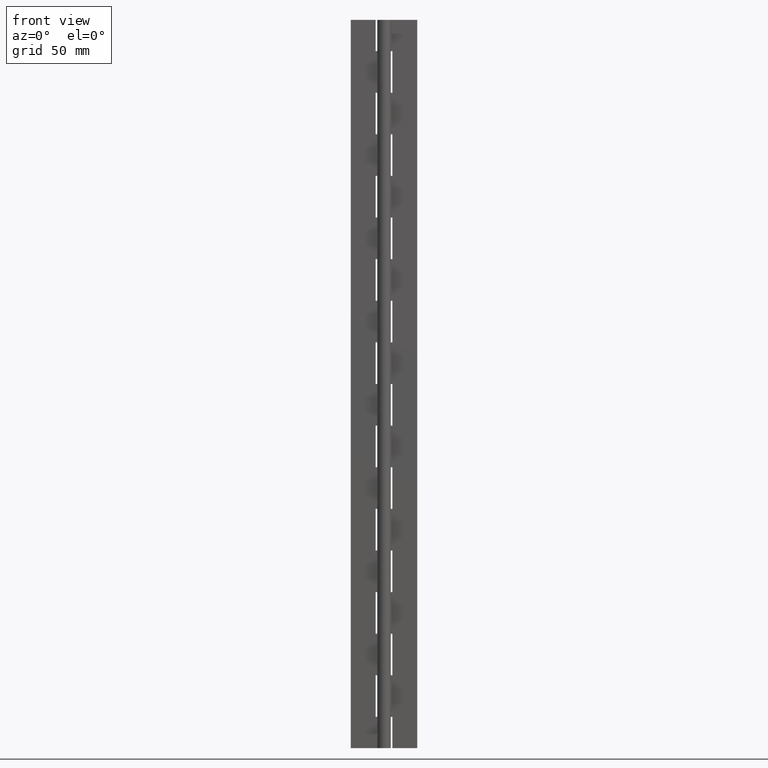
[diagram: clean part render]
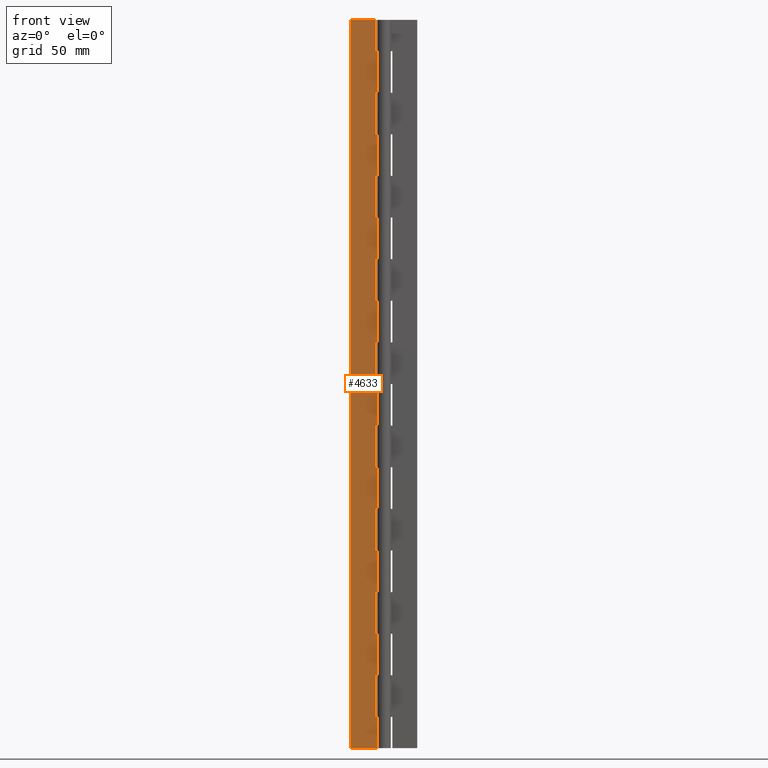
[diagram: same view with one face highlighted and labeled with its STEP entity id]
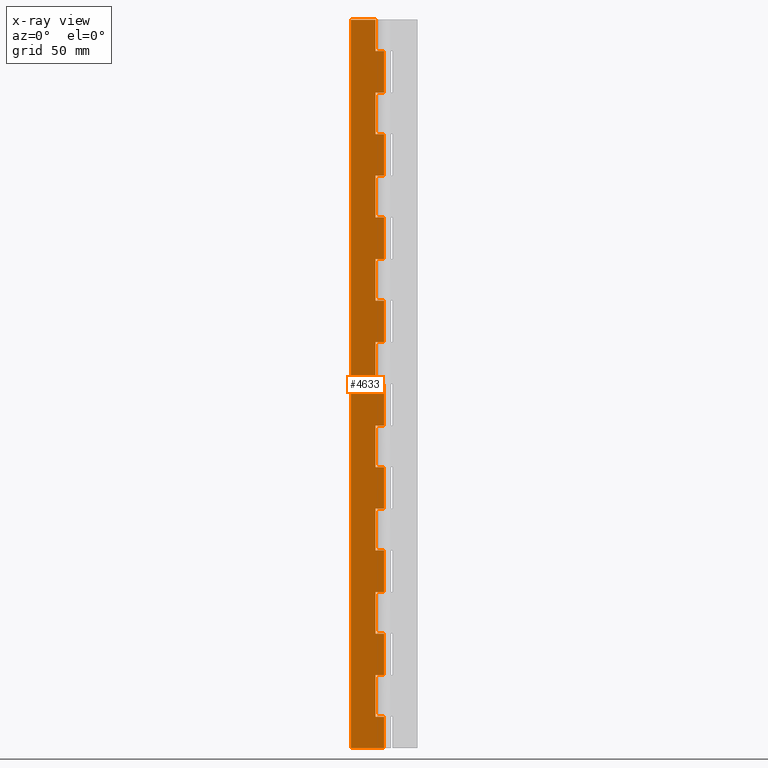
[diagram: x-ray of the same camera — body ghosted, the highlighted face saturated]
A machine part, front view. The second image highlights one B-rep face of the part: STEP entity #4633.
The next image is the same camera in x-ray: the body ghosted, the highlighted face saturated — about 0% of this face is hidden behind the body in this view.
In plain terms, the highlighted face is a freeform B-spline surface patch.
Its self-contained STEP definition (entity closure, byte-faithful):
#2877=CARTESIAN_POINT('',(-4.0,1.750000000000030,14.999991999999960));
#2878=VERTEX_POINT('',#2877);
#2884=CARTESIAN_POINT('',(0.0,1.750000000000000,14.999991999999899));
#2885=VERTEX_POINT('',#2884);
#2886=CARTESIAN_POINT('',(0.0,1.750000000000000,14.999991999999899));
#2887=CARTESIAN_POINT('',(-4.0,1.750000000000030,14.999991999999960));
#2888=QUASI_UNIFORM_CURVE('',1,(#2886,#2887),.UNSPECIFIED.,.F.,.U.);
#2889=EDGE_CURVE('',#2885,#2878,#2888,.T.);
#2955=CARTESIAN_POINT('',(0.0,1.750000000000000,34.999991999999949));
#2956=VERTEX_POINT('',#2955);
#2976=CARTESIAN_POINT('',(-4.0,1.750000000000030,34.999991999999999));
#2977=VERTEX_POINT('',#2976);
#2978=CARTESIAN_POINT('',(-4.0,1.750000000000030,34.999991999999999));
#2979=CARTESIAN_POINT('',(0.0,1.750000000000000,34.999991999999949));
#2980=QUASI_UNIFORM_CURVE('',1,(#2978,#2979),.UNSPECIFIED.,.F.,.U.);
#2981=EDGE_CURVE('',#2977,#2956,#2980,.T.);
#3010=CARTESIAN_POINT('',(-4.0,1.750000000000030,14.999991999999960));
#3011=CARTESIAN_POINT('',(-4.0,1.750000000000030,34.999991999999999));
#3012=QUASI_UNIFORM_CURVE('',1,(#3010,#3011),.UNSPECIFIED.,.F.,.U.);
#3013=EDGE_CURVE('',#2878,#2977,#3012,.T.);
#3053=CARTESIAN_POINT('',(-4.0,1.750000000000030,54.999991999999899));
#3054=VERTEX_POINT('',#3053);
#3060=CARTESIAN_POINT('',(0.0,1.750000000000000,54.999991999999899));
#3061=VERTEX_POINT('',#3060);
#3062=CARTESIAN_POINT('',(0.0,1.750000000000000,54.999991999999899));
#3063=CARTESIAN_POINT('',(-4.0,1.750000000000030,54.999991999999899));
#3064=QUASI_UNIFORM_CURVE('',1,(#3062,#3063),.UNSPECIFIED.,.F.,.U.);
#3065=EDGE_CURVE('',#3061,#3054,#3064,.T.);
#3131=CARTESIAN_POINT('',(0.0,1.750000000000000,74.999992000000006));
#3132=VERTEX_POINT('',#3131);
#3152=CARTESIAN_POINT('',(-4.0,1.750000000000030,74.999992000000006));
#3153=VERTEX_POINT('',#3152);
#3154=CARTESIAN_POINT('',(-4.0,1.750000000000030,74.999992000000006));
#3155=CARTESIAN_POINT('',(0.0,1.750000000000000,74.999992000000006));
#3156=QUASI_UNIFORM_CURVE('',1,(#3154,#3155),.UNSPECIFIED.,.F.,.U.);
#3157=EDGE_CURVE('',#3153,#3132,#3156,.T.);
#3186=CARTESIAN_POINT('',(-4.0,1.750000000000030,54.999991999999899));
#3187=CARTESIAN_POINT('',(-4.0,1.750000000000030,74.999992000000006));
#3188=QUASI_UNIFORM_CURVE('',1,(#3186,#3187),.UNSPECIFIED.,.F.,.U.);
#3189=EDGE_CURVE('',#3054,#3153,#3188,.T.);
#3229=CARTESIAN_POINT('',(-4.0,1.750000000000030,94.999992000000006));
#3230=VERTEX_POINT('',#3229);
#3236=CARTESIAN_POINT('',(0.0,1.750000000000000,94.999992000000006));
#3237=VERTEX_POINT('',#3236);
#3238=CARTESIAN_POINT('',(0.0,1.750000000000000,94.999992000000006));
#3239=CARTESIAN_POINT('',(-4.0,1.750000000000030,94.999992000000006));
#3240=QUASI_UNIFORM_CURVE('',1,(#3238,#3239),.UNSPECIFIED.,.F.,.U.);
#3241=EDGE_CURVE('',#3237,#3230,#3240,.T.);
#3307=CARTESIAN_POINT('',(0.0,1.750000000000000,114.999992000000010));
#3308=VERTEX_POINT('',#3307);
#3328=CARTESIAN_POINT('',(-4.0,1.750000000000030,114.999992000000010));
#3329=VERTEX_POINT('',#3328);
#3330=CARTESIAN_POINT('',(-4.0,1.750000000000030,114.999992000000010));
#3331=CARTESIAN_POINT('',(0.0,1.750000000000000,114.999992000000010));
#3332=QUASI_UNIFORM_CURVE('',1,(#3330,#3331),.UNSPECIFIED.,.F.,.U.);
#3333=EDGE_CURVE('',#3329,#3308,#3332,.T.);
#3362=CARTESIAN_POINT('',(-4.0,1.750000000000030,94.999992000000006));
#3363=CARTESIAN_POINT('',(-4.0,1.750000000000030,114.999992000000010));
#3364=QUASI_UNIFORM_CURVE('',1,(#3362,#3363),.UNSPECIFIED.,.F.,.U.);
#3365=EDGE_CURVE('',#3230,#3329,#3364,.T.);
#3405=CARTESIAN_POINT('',(-4.0,1.750000000000030,134.999991999999990));
#3406=VERTEX_POINT('',#3405);
#3412=CARTESIAN_POINT('',(0.0,1.750000000000000,134.999991999999990));
#3413=VERTEX_POINT('',#3412);
#3414=CARTESIAN_POINT('',(0.0,1.750000000000000,134.999991999999990));
#3415=CARTESIAN_POINT('',(-4.0,1.750000000000030,134.999991999999990));
#3416=QUASI_UNIFORM_CURVE('',1,(#3414,#3415),.UNSPECIFIED.,.F.,.U.);
#3417=EDGE_CURVE('',#3413,#3406,#3416,.T.);
#3483=CARTESIAN_POINT('',(0.0,1.750000000000000,154.999991999999990));
#3484=VERTEX_POINT('',#3483);
#3504=CARTESIAN_POINT('',(-4.0,1.750000000000030,154.999991999999990));
#3505=VERTEX_POINT('',#3504);
#3506=CARTESIAN_POINT('',(-4.0,1.750000000000030,154.999991999999990));
#3507=CARTESIAN_POINT('',(0.0,1.750000000000000,154.999991999999990));
#3508=QUASI_UNIFORM_CURVE('',1,(#3506,#3507),.UNSPECIFIED.,.F.,.U.);
#3509=EDGE_CURVE('',#3505,#3484,#3508,.T.);
#3538=CARTESIAN_POINT('',(-4.0,1.750000000000030,134.999991999999990));
#3539=CARTESIAN_POINT('',(-4.0,1.750000000000030,154.999991999999990));
#3540=QUASI_UNIFORM_CURVE('',1,(#3538,#3539),.UNSPECIFIED.,.F.,.U.);
#3541=EDGE_CURVE('',#3406,#3505,#3540,.T.);
#3581=CARTESIAN_POINT('',(-4.0,1.750000000000030,174.999991999999990));
#3582=VERTEX_POINT('',#3581);
#3588=CARTESIAN_POINT('',(0.0,1.750000000000000,174.999991999999990));
#3589=VERTEX_POINT('',#3588);
#3590=CARTESIAN_POINT('',(0.0,1.750000000000000,174.999991999999990));
#3591=CARTESIAN_POINT('',(-4.0,1.750000000000030,174.999991999999990));
#3592=QUASI_UNIFORM_CURVE('',1,(#3590,#3591),.UNSPECIFIED.,.F.,.U.);
#3593=EDGE_CURVE('',#3589,#3582,#3592,.T.);
#3659=CARTESIAN_POINT('',(0.0,1.750000000000000,194.999991999999990));
#3660=VERTEX_POINT('',#3659);
#3680=CARTESIAN_POINT('',(-4.0,1.750000000000030,194.999991999999990));
#3681=VERTEX_POINT('',#3680);
#3682=CARTESIAN_POINT('',(-4.0,1.750000000000030,194.999991999999990));
#3683=CARTESIAN_POINT('',(0.0,1.750000000000000,194.999991999999990));
#3684=QUASI_UNIFORM_CURVE('',1,(#3682,#3683),.UNSPECIFIED.,.F.,.U.);
#3685=EDGE_CURVE('',#3681,#3660,#3684,.T.);
#3714=CARTESIAN_POINT('',(-4.0,1.750000000000030,174.999991999999990));
#3715=CARTESIAN_POINT('',(-4.0,1.750000000000030,194.999991999999990));
#3716=QUASI_UNIFORM_CURVE('',1,(#3714,#3715),.UNSPECIFIED.,.F.,.U.);
#3717=EDGE_CURVE('',#3582,#3681,#3716,.T.);
#3757=CARTESIAN_POINT('',(-4.0,1.750000000000030,214.999991999999990));
#3758=VERTEX_POINT('',#3757);
#3764=CARTESIAN_POINT('',(0.0,1.750000000000000,214.999991999999990));
#3765=VERTEX_POINT('',#3764);
#3766=CARTESIAN_POINT('',(0.0,1.750000000000000,214.999991999999990));
#3767=CARTESIAN_POINT('',(-4.0,1.750000000000030,214.999991999999990));
#3768=QUASI_UNIFORM_CURVE('',1,(#3766,#3767),.UNSPECIFIED.,.F.,.U.);
#3769=EDGE_CURVE('',#3765,#3758,#3768,.T.);
#3835=CARTESIAN_POINT('',(0.0,1.750000000000000,234.999991999999990));
#3836=VERTEX_POINT('',#3835);
#3856=CARTESIAN_POINT('',(-4.0,1.750000000000030,234.999991999999990));
#3857=VERTEX_POINT('',#3856);
#3858=CARTESIAN_POINT('',(-4.0,1.750000000000030,234.999991999999990));
#3859=CARTESIAN_POINT('',(0.0,1.750000000000000,234.999991999999990));
#3860=QUASI_UNIFORM_CURVE('',1,(#3858,#3859),.UNSPECIFIED.,.F.,.U.);
#3861=EDGE_CURVE('',#3857,#3836,#3860,.T.);
#3890=CARTESIAN_POINT('',(-4.0,1.750000000000030,214.999991999999990));
#3891=CARTESIAN_POINT('',(-4.0,1.750000000000030,234.999991999999990));
#3892=QUASI_UNIFORM_CURVE('',1,(#3890,#3891),.UNSPECIFIED.,.F.,.U.);
#3893=EDGE_CURVE('',#3758,#3857,#3892,.T.);
#3933=CARTESIAN_POINT('',(-4.0,1.750000000000030,254.999991999999990));
#3934=VERTEX_POINT('',#3933);
#3940=CARTESIAN_POINT('',(0.0,1.750000000000000,254.999991999999990));
#3941=VERTEX_POINT('',#3940);
#3942=CARTESIAN_POINT('',(0.0,1.750000000000000,254.999991999999990));
#3943=CARTESIAN_POINT('',(-4.0,1.750000000000030,254.999991999999990));
#3944=QUASI_UNIFORM_CURVE('',1,(#3942,#3943),.UNSPECIFIED.,.F.,.U.);
#3945=EDGE_CURVE('',#3941,#3934,#3944,.T.);
#4011=CARTESIAN_POINT('',(0.0,1.750000000000000,274.999992000000020));
#4012=VERTEX_POINT('',#4011);
#4032=CARTESIAN_POINT('',(-4.0,1.750000000000030,274.999992000000020));
#4033=VERTEX_POINT('',#4032);
#4034=CARTESIAN_POINT('',(-4.0,1.750000000000030,274.999992000000020));
#4035=CARTESIAN_POINT('',(0.0,1.750000000000000,274.999992000000020));
#4036=QUASI_UNIFORM_CURVE('',1,(#4034,#4035),.UNSPECIFIED.,.F.,.U.);
#4037=EDGE_CURVE('',#4033,#4012,#4036,.T.);
#4066=CARTESIAN_POINT('',(-4.0,1.750000000000030,254.999991999999990));
#4067=CARTESIAN_POINT('',(-4.0,1.750000000000030,274.999992000000020));
#4068=QUASI_UNIFORM_CURVE('',1,(#4066,#4067),.UNSPECIFIED.,.F.,.U.);
#4069=EDGE_CURVE('',#3934,#4033,#4068,.T.);
#4081=CARTESIAN_POINT('',(0.0,1.750000000000000,294.999992000000020));
#4082=VERTEX_POINT('',#4081);
#4137=CARTESIAN_POINT('',(-4.0,1.750000000000030,294.999992000000020));
#4138=VERTEX_POINT('',#4137);
#4144=CARTESIAN_POINT('',(0.0,1.750000000000000,294.999992000000020));
#4145=CARTESIAN_POINT('',(-4.0,1.750000000000030,294.999992000000020));
#4146=QUASI_UNIFORM_CURVE('',1,(#4144,#4145),.UNSPECIFIED.,.F.,.U.);
#4147=EDGE_CURVE('',#4082,#4138,#4146,.T.);
#4157=CARTESIAN_POINT('',(-4.0,1.750000000000030,314.999992000000020));
#4158=VERTEX_POINT('',#4157);
#4201=CARTESIAN_POINT('',(0.0,1.750000000000000,314.999992000000020));
#4202=VERTEX_POINT('',#4201);
#4222=CARTESIAN_POINT('',(-4.0,1.750000000000030,314.999992000000020));
#4223=CARTESIAN_POINT('',(0.0,1.750000000000000,314.999992000000020));
#4224=QUASI_UNIFORM_CURVE('',1,(#4222,#4223),.UNSPECIFIED.,.F.,.U.);
#4225=EDGE_CURVE('',#4158,#4202,#4224,.T.);
#4242=CARTESIAN_POINT('',(-4.0,1.750000000000030,294.999992000000020));
#4243=CARTESIAN_POINT('',(-4.0,1.750000000000030,314.999992000000020));
#4244=QUASI_UNIFORM_CURVE('',1,(#4242,#4243),.UNSPECIFIED.,.F.,.U.);
#4245=EDGE_CURVE('',#4138,#4158,#4244,.T.);
#4255=CARTESIAN_POINT('',(-4.0,1.750000000000030,334.999992000000020));
#4256=VERTEX_POINT('',#4255);
#4271=CARTESIAN_POINT('',(-4.0,1.750000000000030,349.999992000000020));
#4272=VERTEX_POINT('',#4271);
#4278=CARTESIAN_POINT('',(-4.0,1.750000000000030,334.999992000000020));
#4279=CARTESIAN_POINT('',(-4.0,1.750000000000030,349.999992000000020));
#4280=QUASI_UNIFORM_CURVE('',1,(#4278,#4279),.UNSPECIFIED.,.F.,.U.);
#4281=EDGE_CURVE('',#4256,#4272,#4280,.T.);
#4293=CARTESIAN_POINT('',(0.0,1.750000000000000,334.999992000000020));
#4294=VERTEX_POINT('',#4293);
#4348=CARTESIAN_POINT('',(0.0,1.750000000000000,334.999992000000020));
#4349=CARTESIAN_POINT('',(-4.0,1.750000000000030,334.999992000000020));
#4350=QUASI_UNIFORM_CURVE('',1,(#4348,#4349),.UNSPECIFIED.,.F.,.U.);
#4351=EDGE_CURVE('',#4294,#4256,#4350,.T.);
#4398=CARTESIAN_POINT('',(0.0,1.750000000000000,0.0));
#4399=VERTEX_POINT('',#4398);
#4419=CARTESIAN_POINT('',(-16.0,1.750000000000000,0.0));
#4420=VERTEX_POINT('',#4419);
#4421=CARTESIAN_POINT('',(-16.0,1.750000000000000,0.0));
#4422=CARTESIAN_POINT('',(0.0,1.750000000000000,0.0));
#4423=QUASI_UNIFORM_CURVE('',1,(#4421,#4422),.UNSPECIFIED.,.F.,.U.);
#4424=EDGE_CURVE('',#4420,#4399,#4423,.T.);
#4439=CARTESIAN_POINT('',(-16.0,1.750000000000000,349.999992000000020));
#4440=VERTEX_POINT('',#4439);
#4441=CARTESIAN_POINT('',(-16.0,1.750000000000000,349.999992000000020));
#4442=CARTESIAN_POINT('',(-4.0,1.750000000000030,349.999992000000020));
#4443=QUASI_UNIFORM_CURVE('',1,(#4441,#4442),.UNSPECIFIED.,.F.,.U.);
#4444=EDGE_CURVE('',#4440,#4272,#4443,.T.);
#4543=CARTESIAN_POINT('',(0.0,1.750000000000000,14.999991999999899));
#4544=CARTESIAN_POINT('',(0.0,1.750000000000000,0.0));
#4545=QUASI_UNIFORM_CURVE('',1,(#4543,#4544),.UNSPECIFIED.,.F.,.U.);
#4546=EDGE_CURVE('',#2885,#4399,#4545,.T.);
#4552=CARTESIAN_POINT('',(-16.799199968988891,1.750000000000000,-17.482498922032089));
#4553=CARTESIAN_POINT('',(-16.799199968988891,1.750000000000000,367.482500309763510));
#4554=CARTESIAN_POINT('',(0.799200398142338,1.750000000000000,-17.482498922032089));
#4555=CARTESIAN_POINT('',(0.799200398142338,1.750000000000000,367.482500309763510));
#4556=B_SPLINE_SURFACE_WITH_KNOTS('',1,1,((#4552,#4554),(#4553,#4555)),.UNSPECIFIED.,.F.,.F.,.U.,(2,2),(2,2),(0.0,384.964999231795620),(0.0,17.598400367131230),.UNSPECIFIED.);
#4557=ORIENTED_EDGE('',*,*,#3013,.T.);
#4558=ORIENTED_EDGE('',*,*,#2981,.T.);
#4559=CARTESIAN_POINT('',(0.0,1.750000000000000,54.999991999999899));
#4560=CARTESIAN_POINT('',(0.0,1.750000000000000,34.999991999999949));
#4561=QUASI_UNIFORM_CURVE('',1,(#4559,#4560),.UNSPECIFIED.,.F.,.U.);
#4562=EDGE_CURVE('',#3061,#2956,#4561,.T.);
#4563=ORIENTED_EDGE('',*,*,#4562,.F.);
#4564=ORIENTED_EDGE('',*,*,#3065,.T.);
#4565=ORIENTED_EDGE('',*,*,#3189,.T.);
#4566=ORIENTED_EDGE('',*,*,#3157,.T.);
#4567=CARTESIAN_POINT('',(0.0,1.750000000000000,94.999992000000006));
#4568=CARTESIAN_POINT('',(0.0,1.750000000000000,74.999992000000006));
#4569=QUASI_UNIFORM_CURVE('',1,(#4567,#4568),.UNSPECIFIED.,.F.,.U.);
#4570=EDGE_CURVE('',#3237,#3132,#4569,.T.);
#4571=ORIENTED_EDGE('',*,*,#4570,.F.);
#4572=ORIENTED_EDGE('',*,*,#3241,.T.);
#4573=ORIENTED_EDGE('',*,*,#3365,.T.);
#4574=ORIENTED_EDGE('',*,*,#3333,.T.);
#4575=CARTESIAN_POINT('',(0.0,1.750000000000000,134.999991999999990));
#4576=CARTESIAN_POINT('',(0.0,1.750000000000000,114.999992000000010));
#4577=QUASI_UNIFORM_CURVE('',1,(#4575,#4576),.UNSPECIFIED.,.F.,.U.);
#4578=EDGE_CURVE('',#3413,#3308,#4577,.T.);
#4579=ORIENTED_EDGE('',*,*,#4578,.F.);
#4580=ORIENTED_EDGE('',*,*,#3417,.T.);
#4581=ORIENTED_EDGE('',*,*,#3541,.T.);
#4582=ORIENTED_EDGE('',*,*,#3509,.T.);
#4583=CARTESIAN_POINT('',(0.0,1.750000000000000,174.999991999999990));
#4584=CARTESIAN_POINT('',(0.0,1.750000000000000,154.999991999999990));
#4585=QUASI_UNIFORM_CURVE('',1,(#4583,#4584),.UNSPECIFIED.,.F.,.U.);
#4586=EDGE_CURVE('',#3589,#3484,#4585,.T.);
#4587=ORIENTED_EDGE('',*,*,#4586,.F.);
#4588=ORIENTED_EDGE('',*,*,#3593,.T.);
#4589=ORIENTED_EDGE('',*,*,#3717,.T.);
#4590=ORIENTED_EDGE('',*,*,#3685,.T.);
#4591=CARTESIAN_POINT('',(0.0,1.750000000000000,214.999991999999990));
#4592=CARTESIAN_POINT('',(0.0,1.750000000000000,194.999991999999990));
#4593=QUASI_UNIFORM_CURVE('',1,(#4591,#4592),.UNSPECIFIED.,.F.,.U.);
#4594=EDGE_CURVE('',#3765,#3660,#4593,.T.);
#4595=ORIENTED_EDGE('',*,*,#4594,.F.);
#4596=ORIENTED_EDGE('',*,*,#3769,.T.);
#4597=ORIENTED_EDGE('',*,*,#3893,.T.);
#4598=ORIENTED_EDGE('',*,*,#3861,.T.);
#4599=CARTESIAN_POINT('',(0.0,1.750000000000000,254.999991999999990));
#4600=CARTESIAN_POINT('',(0.0,1.750000000000000,234.999991999999990));
#4601=QUASI_UNIFORM_CURVE('',1,(#4599,#4600),.UNSPECIFIED.,.F.,.U.);
#4602=EDGE_CURVE('',#3941,#3836,#4601,.T.);
#4603=ORIENTED_EDGE('',*,*,#4602,.F.);
#4604=ORIENTED_EDGE('',*,*,#3945,.T.);
#4605=ORIENTED_EDGE('',*,*,#4069,.T.);
#4606=ORIENTED_EDGE('',*,*,#4037,.T.);
#4607=CARTESIAN_POINT('',(0.0,1.750000000000000,294.999992000000020));
#4608=CARTESIAN_POINT('',(0.0,1.750000000000000,274.999992000000020));
#4609=QUASI_UNIFORM_CURVE('',1,(#4607,#4608),.UNSPECIFIED.,.F.,.U.);
#4610=EDGE_CURVE('',#4082,#4012,#4609,.T.);
#4611=ORIENTED_EDGE('',*,*,#4610,.F.);
#4612=ORIENTED_EDGE('',*,*,#4147,.T.);
#4613=ORIENTED_EDGE('',*,*,#4245,.T.);
#4614=ORIENTED_EDGE('',*,*,#4225,.T.);
#4615=CARTESIAN_POINT('',(0.0,1.750000000000000,334.999992000000020));
#4616=CARTESIAN_POINT('',(0.0,1.750000000000000,314.999992000000020));
#4617=QUASI_UNIFORM_CURVE('',1,(#4615,#4616),.UNSPECIFIED.,.F.,.U.);
#4618=EDGE_CURVE('',#4294,#4202,#4617,.T.);
#4619=ORIENTED_EDGE('',*,*,#4618,.F.);
#4620=ORIENTED_EDGE('',*,*,#4351,.T.);
#4621=ORIENTED_EDGE('',*,*,#4281,.T.);
#4622=ORIENTED_EDGE('',*,*,#4444,.F.);
#4623=CARTESIAN_POINT('',(-16.0,1.750000000000000,349.999992000000020));
#4624=CARTESIAN_POINT('',(-16.0,1.750000000000000,0.0));
#4625=QUASI_UNIFORM_CURVE('',1,(#4623,#4624),.UNSPECIFIED.,.F.,.U.);
#4626=EDGE_CURVE('',#4440,#4420,#4625,.T.);
#4627=ORIENTED_EDGE('',*,*,#4626,.T.);
#4628=ORIENTED_EDGE('',*,*,#4424,.T.);
#4629=ORIENTED_EDGE('',*,*,#4546,.F.);
#4630=ORIENTED_EDGE('',*,*,#2889,.T.);
#4631=EDGE_LOOP('',(#4557,#4558,#4563,#4564,#4565,#4566,#4571,#4572,#4573,#4574,#4579,#4580,#4581,#4582,#4587,#4588,#4589,#4590,#4595,#4596,#4597,#4598,#4603,#4604,#4605,#4606,#4611,#4612,#4613,#4614,#4619,#4620,#4621,#4622,#4627,#4628,#4629,#4630));
#4632=FACE_OUTER_BOUND('',#4631,.T.);
#4633=ADVANCED_FACE('',(#4632),#4556,.F.);